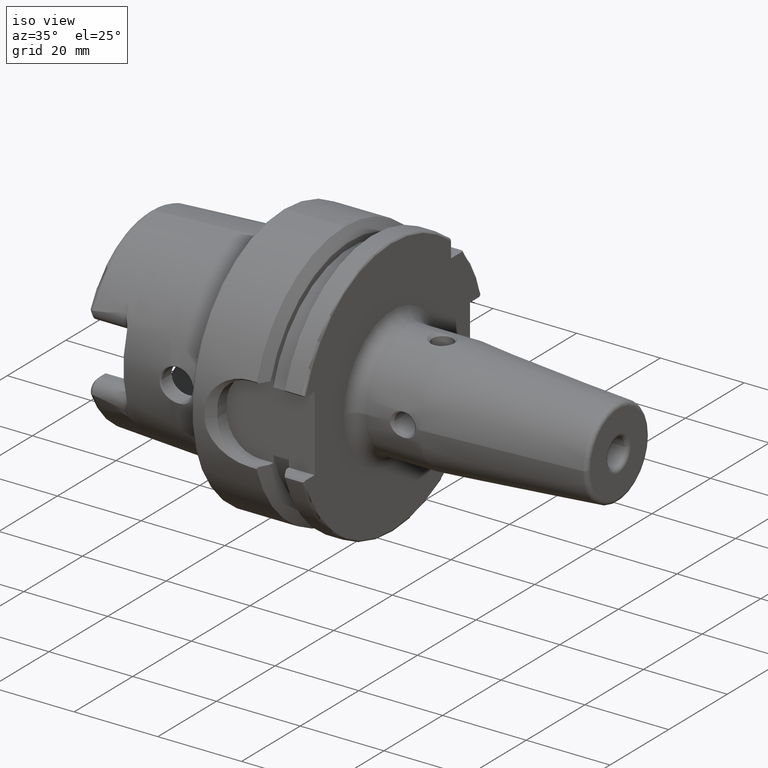
[diagram: clean part render]
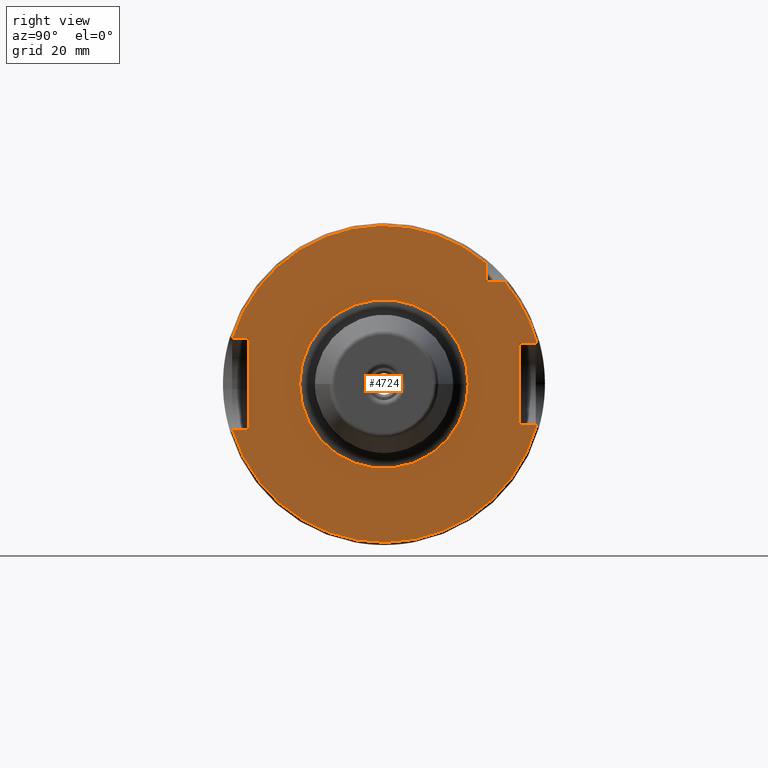
[diagram: tour spotlight — one face highlighted and labeled with its STEP entity id]
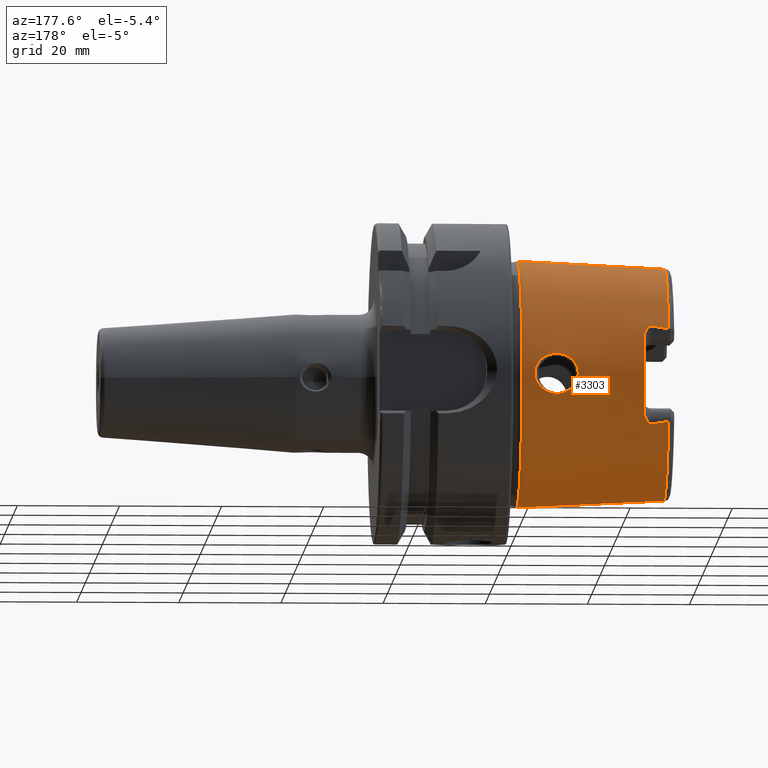
[diagram: tour spotlight — one face highlighted and labeled with its STEP entity id]
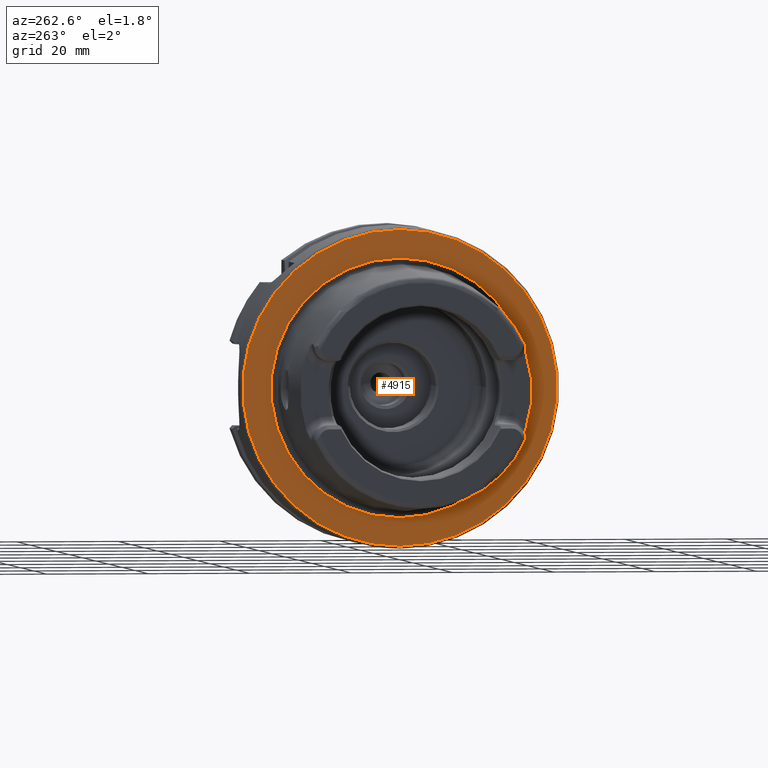
[diagram: tour spotlight — one face highlighted and labeled with its STEP entity id]
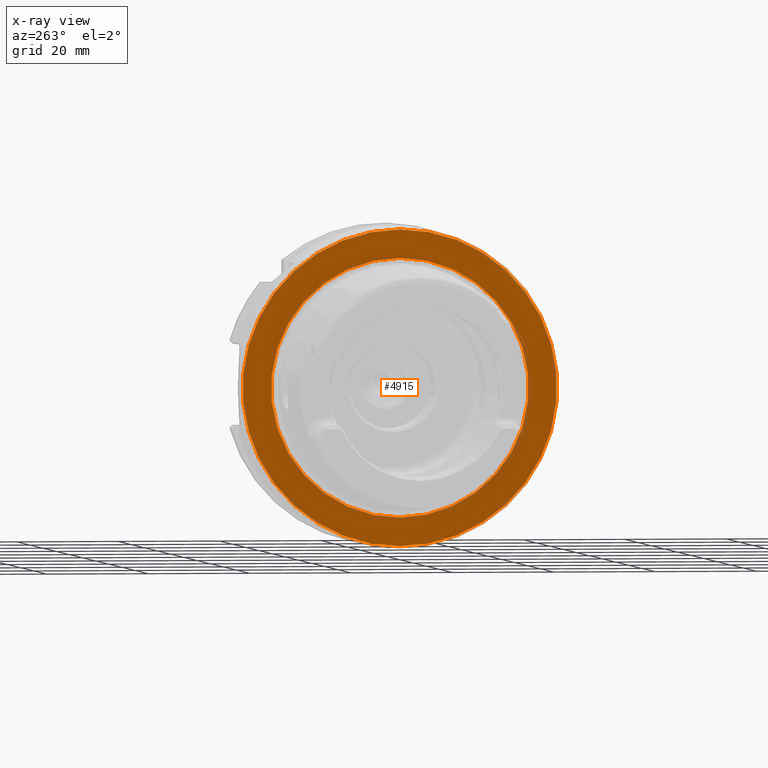
[diagram: x-ray of the same camera — body ghosted, this tour face saturated]
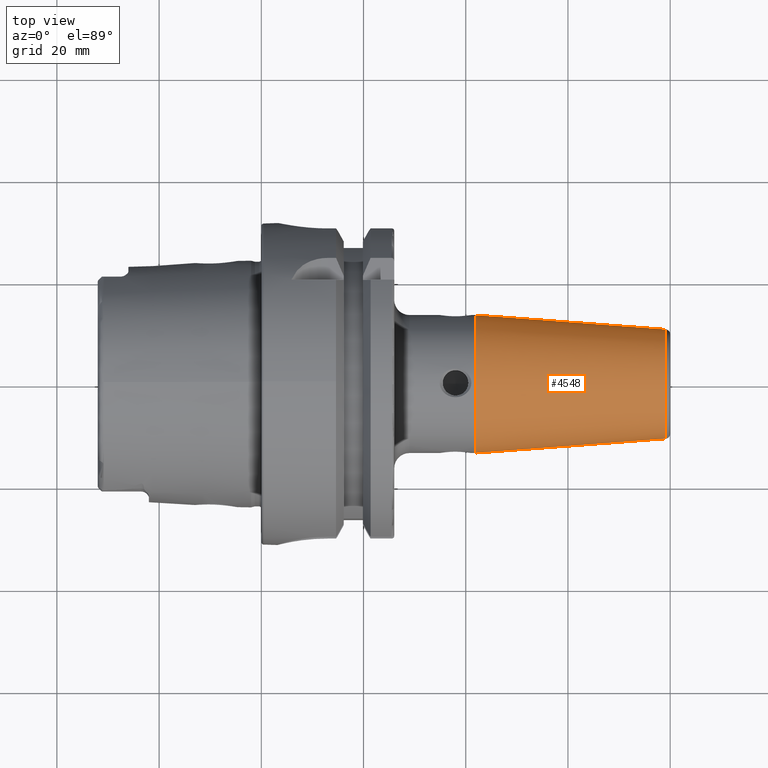
[diagram: tour spotlight — one face highlighted and labeled with its STEP entity id]
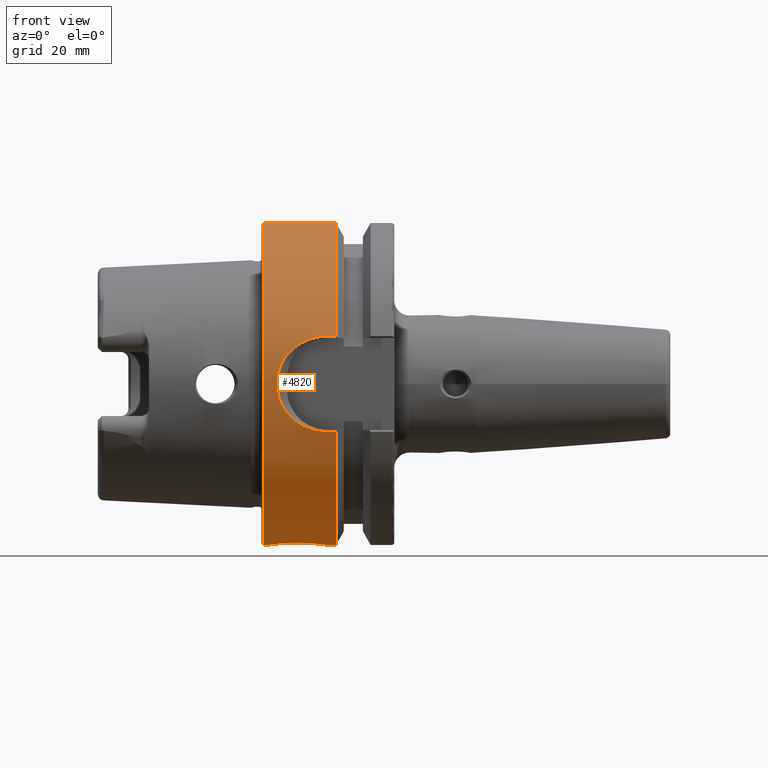
[diagram: tour spotlight — one face highlighted and labeled with its STEP entity id]
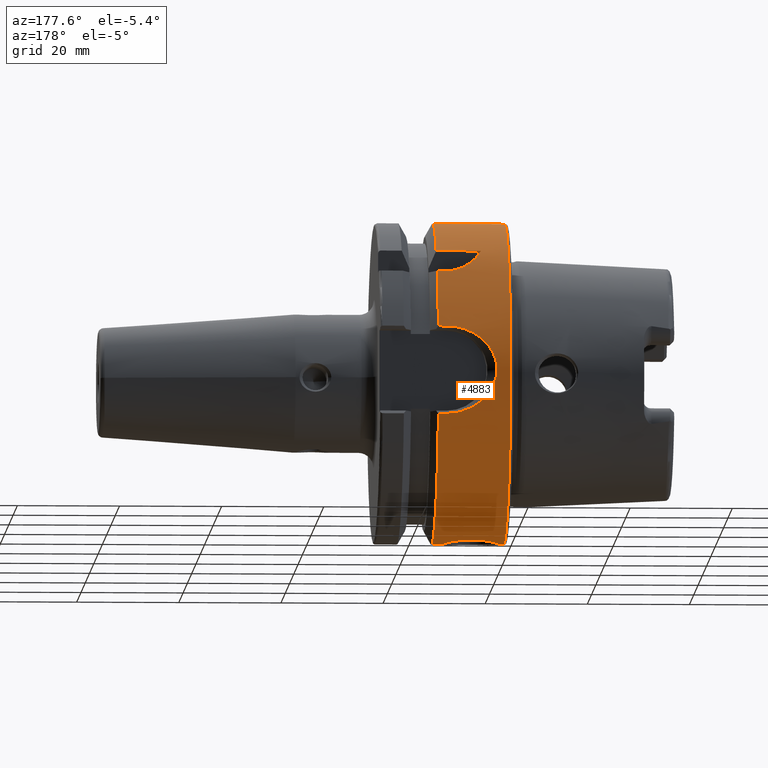
[diagram: tour spotlight — one face highlighted and labeled with its STEP entity id]
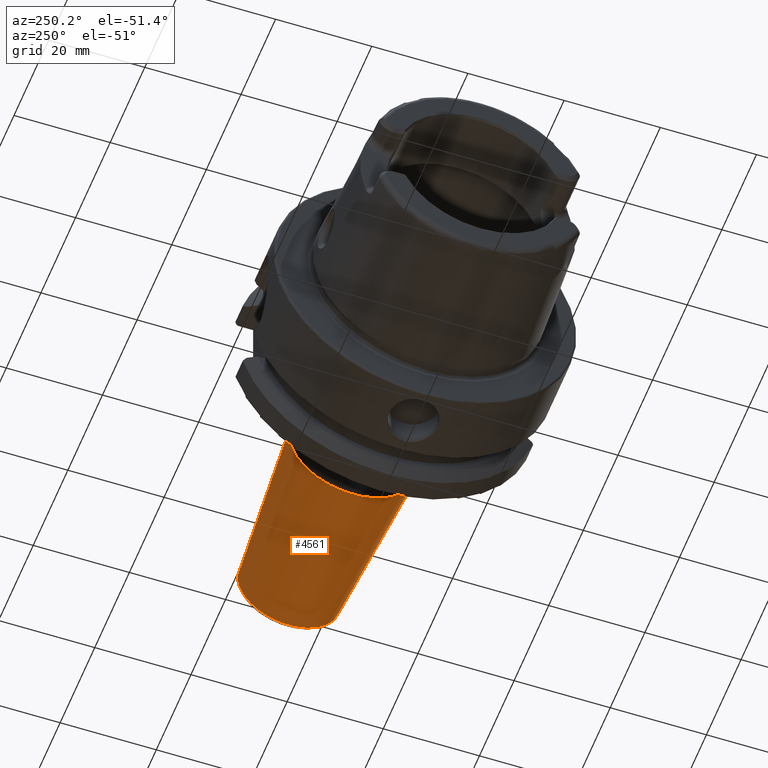
[diagram: tour spotlight — one face highlighted and labeled with its STEP entity id]
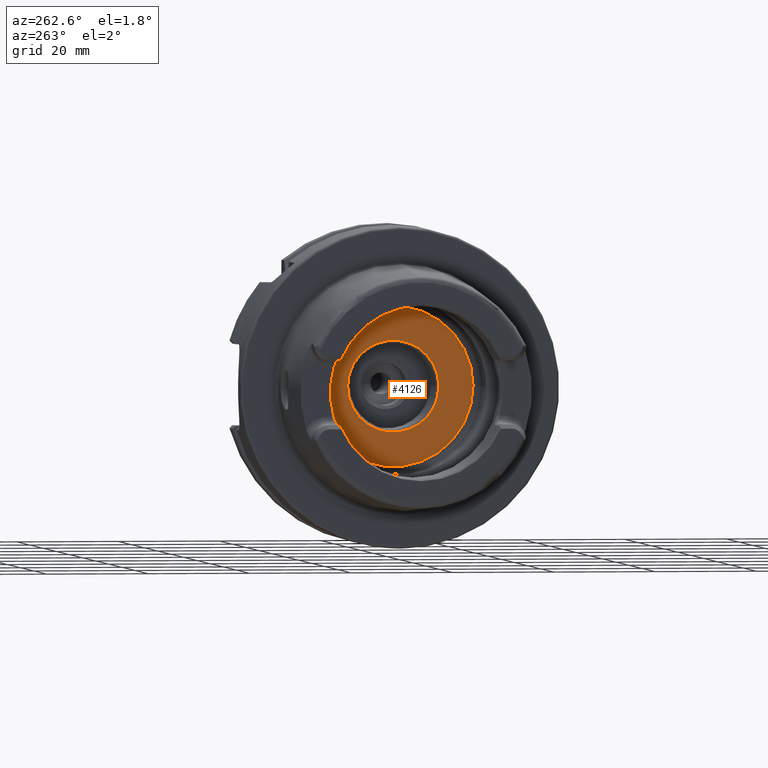
[diagram: tour spotlight — one face highlighted and labeled with its STEP entity id]
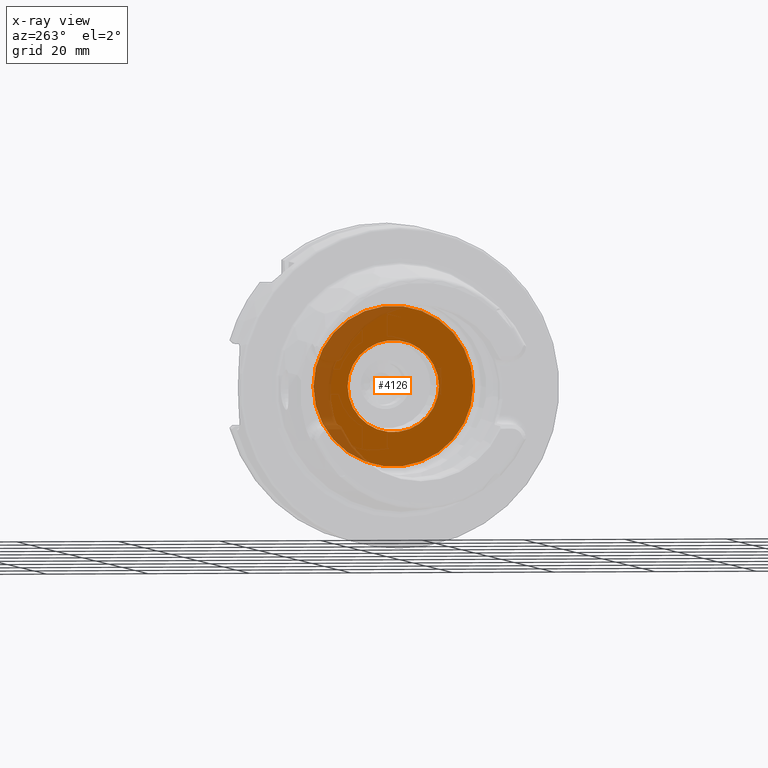
[diagram: x-ray of the same camera — body ghosted, this tour face saturated]
A machine part: a face-by-face anatomy tour. The part has 202 B-rep faces; the first image is the clean iso view, then the 8 largest visible faces are spotlighted one at a time (largest first), each with its STEP entity span.

Face 1 — right view, entity #4724. In plain terms, the highlighted planar face has unit normal (1, 0, 0).
Definition (entity closure, byte-faithful):
#1300=DIRECTION('',(0.E0,1.E0,0.E0));
#1301=VECTOR('',#1300,1.245981869442E-1);
#1302=CARTESIAN_POINT('',(1.023622047244E0,-1.167905273558E0,
-3.543307086614E-1));
#1303=LINE('',#1302,#1301);
#1304=DIRECTION('',(0.E0,0.E0,1.E0));
#1305=VECTOR('',#1304,7.086614173228E-1);
#1306=CARTESIAN_POINT('',(1.023622047244E0,-1.043307086614E0,
-3.543307086614E-1));
#1307=LINE('',#1306,#1305);
#1308=DIRECTION('',(0.E0,1.E0,0.E0));
#1309=VECTOR('',#1308,1.245981869442E-1);
#1310=CARTESIAN_POINT('',(1.023622047244E0,-1.167905273558E0,
3.543307086614E-1));
#1311=LINE('',#1310,#1309);
#1312=DIRECTION('',(0.E0,0.E0,-1.E0));
#1313=VECTOR('',#1312,1.450960064824E-1);
#1314=CARTESIAN_POINT('',(1.023622047244E0,7.874015748031E-1,
9.324975812856E-1));
#1315=LINE('',#1314,#1313);
#1316=DIRECTION('',(0.E0,-1.E0,0.E0));
#1317=VECTOR('',#1316,1.450960064824E-1);
#1318=CARTESIAN_POINT('',(1.023622047244E0,9.324975812856E-1,
7.874015748031E-1));
#1319=LINE('',#1318,#1317);
#1320=DIRECTION('',(0.E0,-7.071067811866E-1,-7.071067811865E-1));
#1321=VECTOR('',#1320,1.095285451143E-2);
#1322=CARTESIAN_POINT('',(1.023622047244E0,1.177036176281E0,3.227054676196E-1));
#1323=LINE('',#1322,#1321);
#1324=DIRECTION('',(0.E0,-1.E0,0.E0));
#1325=VECTOR('',#1324,1.259842519685E-1);
#1326=CARTESIAN_POINT('',(1.023622047244E0,1.169291338583E0,3.149606299213E-1));
#1327=LINE('',#1326,#1325);
#1328=DIRECTION('',(0.E0,0.E0,1.E0));
#1329=VECTOR('',#1328,6.299212598425E-1);
#1330=CARTESIAN_POINT('',(1.023622047244E0,1.043307086614E0,
-3.149606299213E-1));
#1331=LINE('',#1330,#1329);
#1332=DIRECTION('',(0.E0,-1.E0,0.E0));
#1333=VECTOR('',#1332,1.259842519685E-1);
#1334=CARTESIAN_POINT('',(1.023622047244E0,1.169291338583E0,
-3.149606299213E-1));
#1335=LINE('',#1334,#1333);
#1336=DIRECTION('',(0.E0,-7.071067811866E-1,7.071067811865E-1));
#1337=VECTOR('',#1336,1.095285451143E-2);
#1338=CARTESIAN_POINT('',(1.023622047244E0,1.177036176281E0,
-3.227054676196E-1));
#1339=LINE('',#1338,#1337);
#1340=CARTESIAN_POINT('',(1.023622047244E0,0.E0,0.E0));
#1341=DIRECTION('',(1.E0,0.E0,0.E0));
#1342=DIRECTION('',(0.E0,-1.E0,0.E0));
#1343=AXIS2_PLACEMENT_3D('',#1340,#1341,#1342);
#1345=CARTESIAN_POINT('',(1.023622047244E0,0.E0,0.E0));
#1346=DIRECTION('',(1.E0,0.E0,0.E0));
#1347=DIRECTION('',(0.E0,1.E0,0.E0));
#1348=AXIS2_PLACEMENT_3D('',#1345,#1346,#1347);
#1355=CARTESIAN_POINT('',(1.023622047244E0,0.E0,0.E0));
#1356=DIRECTION('',(1.E0,0.E0,0.E0));
#1357=DIRECTION('',(0.E0,-9.569288370446E-1,-2.903225806452E-1));
#1358=AXIS2_PLACEMENT_3D('',#1355,#1356,#1357);
#1480=CARTESIAN_POINT('',(1.023622047244E0,1.177036176281E0,
-3.227054676196E-1));
#1823=CARTESIAN_POINT('',(1.023622047244E0,-1.167905273558E0,
3.543307086614E-1));
#1958=CARTESIAN_POINT('',(1.023622047244E0,-1.167905273558E0,
-3.543307086614E-1));
#2151=CARTESIAN_POINT('',(1.023622047244E0,1.177036176281E0,3.227054676196E-1));
#2170=CARTESIAN_POINT('',(1.023622047244E0,0.E0,0.E0));
#2171=DIRECTION('',(1.E0,0.E0,0.E0));
#2172=DIRECTION('',(0.E0,9.644102863722E-1,2.644102863722E-1));
#2173=AXIS2_PLACEMENT_3D('',#2170,#2171,#2172);
#2175=CARTESIAN_POINT('',(1.023622047244E0,9.324975812856E-1,
7.874015748031E-1));
#2200=CARTESIAN_POINT('',(1.023622047244E0,7.874015748031E-1,
9.324975812856E-1));
#2215=CARTESIAN_POINT('',(1.023622047244E0,0.E0,0.E0));
#2216=DIRECTION('',(1.E0,0.E0,0.E0));
#2217=DIRECTION('',(0.E0,6.451612903226E-1,7.640464053114E-1));
#2218=AXIS2_PLACEMENT_3D('',#2215,#2216,#2217);
#2795=CARTESIAN_POINT('',(1.023622047244E0,1.043307086614E0,
-3.149606299213E-1));
#2796=CARTESIAN_POINT('',(1.023622047244E0,1.043307086614E0,3.149606299213E-1));
#2797=VERTEX_POINT('',#2795);
#2798=VERTEX_POINT('',#2796);
#2827=CARTESIAN_POINT('',(1.023622047244E0,-1.043307086614E0,
-3.543307086614E-1));
#2828=CARTESIAN_POINT('',(1.023622047244E0,-1.043307086614E0,
3.543307086614E-1));
#2829=VERTEX_POINT('',#2827);
#2830=VERTEX_POINT('',#2828);
#2885=CARTESIAN_POINT('',(1.023622047244E0,7.874015748031E-1,
7.874015748031E-1));
#2886=VERTEX_POINT('',#2885);
#3078=CARTESIAN_POINT('',(1.023622047244E0,1.169291338583E0,
-3.149606299213E-1));
#3079=VERTEX_POINT('',#3078);
#3080=CARTESIAN_POINT('',(1.023622047244E0,1.169291338583E0,3.149606299213E-1));
#3081=VERTEX_POINT('',#3080);
#3094=VERTEX_POINT('',#1958);
#3095=VERTEX_POINT('',#1480);
#3098=VERTEX_POINT('',#2151);
#3099=VERTEX_POINT('',#2175);
#3102=VERTEX_POINT('',#2200);
#3103=VERTEX_POINT('',#1823);
#3242=CARTESIAN_POINT('',(1.023622047244E0,-6.495E-1,0.E0));
#3243=CARTESIAN_POINT('',(1.023622047244E0,6.495E-1,0.E0));
#3244=VERTEX_POINT('',#3242);
#3245=VERTEX_POINT('',#3243);
#4686=CARTESIAN_POINT('',(1.023622047244E0,0.E0,0.E0));
#4687=DIRECTION('',(1.E0,0.E0,0.E0));
#4688=DIRECTION('',(0.E0,0.E0,1.E0));
#4689=AXIS2_PLACEMENT_3D('',#4686,#4687,#4688);
#4690=PLANE('',#4689);
#4692=ORIENTED_EDGE('',*,*,#4691,.F.);
#4694=ORIENTED_EDGE('',*,*,#4693,.T.);
#4696=ORIENTED_EDGE('',*,*,#4695,.T.);
#4698=ORIENTED_EDGE('',*,*,#4697,.F.);
#4700=ORIENTED_EDGE('',*,*,#4699,.F.);
#4702=ORIENTED_EDGE('',*,*,#4701,.T.);
#4704=ORIENTED_EDGE('',*,*,#4703,.F.);
#4706=ORIENTED_EDGE('',*,*,#4705,.F.);
#4708=ORIENTED_EDGE('',*,*,#4707,.T.);
#4710=ORIENTED_EDGE('',*,*,#4709,.T.);
#4712=ORIENTED_EDGE('',*,*,#4711,.F.);
#4714=ORIENTED_EDGE('',*,*,#4713,.F.);
#4716=ORIENTED_EDGE('',*,*,#4715,.F.);
#4717=EDGE_LOOP('',(#4692,#4694,#4696,#4698,#4700,#4702,#4704,#4706,#4708,#4710,
#4712,#4714,#4716));
#4718=FACE_OUTER_BOUND('',#4717,.F.);
#4719=ORIENTED_EDGE('',*,*,#4676,.T.);
#4721=ORIENTED_EDGE('',*,*,#4720,.T.);
#4722=EDGE_LOOP('',(#4719,#4721));
#4723=FACE_BOUND('',#4722,.F.);
#4724=ADVANCED_FACE('',(#4718,#4723),#4690,.T.);
#1344=CIRCLE('',#1343,6.495E-1);
#1349=CIRCLE('',#1348,6.495E-1);
#1359=CIRCLE('',#1358,1.220472440945E0);
#2174=CIRCLE('',#2173,1.220472440945E0);
#2219=CIRCLE('',#2218,1.220472440945E0);
#4676=EDGE_CURVE('',#3244,#3245,#1344,.T.);
#4691=EDGE_CURVE('',#3094,#3095,#1359,.T.);
#4693=EDGE_CURVE('',#3094,#2829,#1303,.T.);
#4695=EDGE_CURVE('',#2829,#2830,#1307,.T.);
#4697=EDGE_CURVE('',#3103,#2830,#1311,.T.);
#4699=EDGE_CURVE('',#3102,#3103,#2219,.T.);
#4701=EDGE_CURVE('',#3102,#2886,#1315,.T.);
#4703=EDGE_CURVE('',#3099,#2886,#1319,.T.);
#4705=EDGE_CURVE('',#3098,#3099,#2174,.T.);
#4707=EDGE_CURVE('',#3098,#3081,#1323,.T.);
#4709=EDGE_CURVE('',#3081,#2798,#1327,.T.);
#4711=EDGE_CURVE('',#2797,#2798,#1331,.T.);
#4713=EDGE_CURVE('',#3079,#2797,#1335,.T.);
#4715=EDGE_CURVE('',#3095,#3079,#1339,.T.);
#4720=EDGE_CURVE('',#3245,#3244,#1349,.T.);

Face 2 — auxiliary view, entity #3303. In plain terms, the highlighted conical surface has half-angle 2.868 deg.
Definition (entity closure, byte-faithful):
#2=CARTESIAN_POINT('',(-1.214962335933E0,0.E0,0.E0));
#3=DIRECTION('',(-1.E0,0.E0,0.E0));
#4=DIRECTION('',(0.E0,9.163649919573E-1,-4.003438540993E-1));
#5=AXIS2_PLACEMENT_3D('',#2,#3,#4);
#7=CARTESIAN_POINT('',(-7.874326638371E-2,0.E0,0.E0));
#8=DIRECTION('',(-1.E0,0.E0,0.E0));
#9=DIRECTION('',(0.E0,0.E0,1.E0));
#10=AXIS2_PLACEMENT_3D('',#7,#8,#9);
#12=CARTESIAN_POINT('',(-1.214962335933E0,0.E0,0.E0));
#13=DIRECTION('',(-1.E0,0.E0,0.E0));
#14=DIRECTION('',(0.E0,0.E0,1.E0));
#15=AXIS2_PLACEMENT_3D('',#12,#13,#14);
#17=CARTESIAN_POINT('',(-1.214962335933E0,8.216463940023E-1,3.589629535925E-1));
#18=CARTESIAN_POINT('',(-1.202137723520E0,8.216639653228E-1,3.605276004912E-1));
#19=CARTESIAN_POINT('',(-1.177407684652E0,8.216344615646E-1,3.636728149463E-1));
#20=CARTESIAN_POINT('',(-1.143154063882E0,8.213907522023E-1,3.684365793121E-1));
#21=CARTESIAN_POINT('',(-1.111500122064E0,8.209350689024E-1,3.732991764527E-1));
#22=CARTESIAN_POINT('',(-1.092007231354E0,8.204717269718E-1,3.766570196267E-1));
#23=CARTESIAN_POINT('',(-1.082677165354E0,8.201929111471E-1,3.783772381900E-1));
#25=CARTESIAN_POINT('',(-1.214962335933E0,8.216463940023E-1,
-3.589629535925E-1));
#26=CARTESIAN_POINT('',(-1.202137723520E0,8.216639653228E-1,
-3.605276004912E-1));
#27=CARTESIAN_POINT('',(-1.177407684652E0,8.216344615646E-1,
-3.636728149463E-1));
#28=CARTESIAN_POINT('',(-1.143154063882E0,8.213907522023E-1,
-3.684365793122E-1));
#29=CARTESIAN_POINT('',(-1.111500122063E0,8.209350689024E-1,
-3.732991764527E-1));
#30=CARTESIAN_POINT('',(-1.092007231354E0,8.204717269718E-1,
-3.766570196267E-1));
#31=CARTESIAN_POINT('',(-1.082677165354E0,8.201929111471E-1,
-3.783772381900E-1));
#33=CARTESIAN_POINT('',(-5.135587364269E-1,9.317761270647E-1,0.E0));
#34=CARTESIAN_POINT('',(-5.135587364269E-1,9.317761270647E-1,
-1.059444452188E-2));
#35=CARTESIAN_POINT('',(-5.112597052915E-1,9.315338257443E-1,
-3.114181466205E-2));
#36=CARTESIAN_POINT('',(-5.014470522860E-1,9.305604535621E-1,
-6.048739951771E-2));
#37=CARTESIAN_POINT('',(-4.859473398358E-1,9.292047173046E-1,
-8.702272828687E-2));
#38=CARTESIAN_POINT('',(-4.652534086689E-1,9.277410228939E-1,
-1.103260432304E-1));
#39=CARTESIAN_POINT('',(-4.399343063564E-1,9.264965720588E-1,
-1.295815820201E-1));
#40=CARTESIAN_POINT('',(-4.112508109157E-1,9.258207256304E-1,
-1.438139631638E-1));
#41=CARTESIAN_POINT('',(-3.805744316710E-1,9.259628364122E-1,
-1.525413198110E-1));
#42=CARTESIAN_POINT('',(-3.491300482257E-1,9.270293295367E-1,
-1.556952009316E-1));
#43=CARTESIAN_POINT('',(-3.175277998099E-1,9.290348030975E-1,
-1.533200893499E-1));
#44=CARTESIAN_POINT('',(-2.866288199643E-1,9.318865010712E-1,
-1.454333333278E-1));
#45=CARTESIAN_POINT('',(-2.568102767866E-1,9.354727822779E-1,
-1.316285605697E-1));
#46=CARTESIAN_POINT('',(-2.307133790197E-1,9.392755291863E-1,
-1.128189098473E-1));
#47=CARTESIAN_POINT('',(-2.090756611950E-1,9.428803181948E-1,
-8.972578975874E-2));
#48=CARTESIAN_POINT('',(-1.926659984561E-1,9.458837318081E-1,
-6.324011733582E-2));
#49=CARTESIAN_POINT('',(-1.818249999109E-1,9.479940993873E-1,
-3.305526295405E-2));
#50=CARTESIAN_POINT('',(-1.791683784831E-1,9.485287041170E-1,
-1.132568648947E-2));
#51=CARTESIAN_POINT('',(-1.791683784831E-1,9.485287041170E-1,0.E0));
#53=CARTESIAN_POINT('',(-1.791683784831E-1,9.485287041170E-1,0.E0));
#54=CARTESIAN_POINT('',(-1.791683784831E-1,9.485287041170E-1,
1.125393156092E-2));
#55=CARTESIAN_POINT('',(-1.817938965527E-1,9.480004279794E-1,
3.286506563893E-2));
#56=CARTESIAN_POINT('',(-1.925167139127E-1,9.459123193772E-1,
6.291328007326E-2));
#57=CARTESIAN_POINT('',(-2.088312421430E-1,9.429234192839E-1,
8.940721633452E-2));
#58=CARTESIAN_POINT('',(-2.304380063324E-1,9.393183003810E-1,
1.125854905139E-1));
#59=CARTESIAN_POINT('',(-2.566028044485E-1,9.354997705104E-1,
1.315154173367E-1));
#60=CARTESIAN_POINT('',(-2.864670183772E-1,9.319034963393E-1,
1.453777911108E-1));
#61=CARTESIAN_POINT('',(-3.173741363603E-1,9.290467043507E-1,
1.532956042085E-1));
#62=CARTESIAN_POINT('',(-3.489901207594E-1,9.270360614975E-1,
1.556974112705E-1));
#63=CARTESIAN_POINT('',(-3.804412569754E-1,9.259652844026E-1,
1.525672724497E-1));
#64=CARTESIAN_POINT('',(-4.111359782159E-1,9.258195955679E-1,
1.438580890741E-1));
#65=CARTESIAN_POINT('',(-4.398122717152E-1,9.264922531515E-1,
1.296552079440E-1));
#66=CARTESIAN_POINT('',(-4.651284366432E-1,9.277335790677E-1,
1.104383199464E-1));
#67=CARTESIAN_POINT('',(-4.858294077307E-1,9.291952802441E-1,
8.718376756846E-2));
#68=CARTESIAN_POINT('',(-5.013786107220E-1,9.305538653369E-1,
6.064605492795E-2));
#69=CARTESIAN_POINT('',(-5.112424733790E-1,9.315319984649E-1,
3.124649715283E-2));
#70=CARTESIAN_POINT('',(-5.135587364269E-1,9.317761270647E-1,
1.063446270722E-2));
#71=CARTESIAN_POINT('',(-5.135587364269E-1,9.317761270647E-1,0.E0));
#211=CARTESIAN_POINT('',(-1.082677165354E0,8.201929111471E-1,
-3.783772381900E-1));
#212=CARTESIAN_POINT('',(-1.080309829068E0,8.201221666509E-1,
-3.788137126829E-1));
#213=CARTESIAN_POINT('',(-1.075594075364E0,8.204210102496E-1,
-3.787309924892E-1));
#214=CARTESIAN_POINT('',(-1.068447470776E0,8.222354159038E-1,
-3.756470066564E-1));
#215=CARTESIAN_POINT('',(-1.061738070197E0,8.249516507251E-1,
-3.704741763439E-1));
#216=CARTESIAN_POINT('',(-1.055444552167E0,8.281651463979E-1,
-3.640261670956E-1));
#217=CARTESIAN_POINT('',(-1.049345846034E0,8.318078643387E-1,
-3.564100526824E-1));
#218=CARTESIAN_POINT('',(-1.043455920428E0,8.358237463313E-1,
-3.476666565947E-1));
#219=CARTESIAN_POINT('',(-1.037919085595E0,8.401294406465E-1,
-3.378858227048E-1));
#220=CARTESIAN_POINT('',(-1.032740774694E0,8.448266636937E-1,
-3.267036775167E-1));
#221=CARTESIAN_POINT('',(-1.028158698021E0,8.499727965999E-1,
-3.137638462499E-1));
#222=CARTESIAN_POINT('',(-1.024670355310E0,8.555628502604E-1,
-2.987534840124E-1));
#223=CARTESIAN_POINT('',(-1.023622047244E0,8.595096227887E-1,
-2.872696979579E-1));
#224=CARTESIAN_POINT('',(-1.023622047244E0,8.615055747168E-1,
-2.811537426929E-1));
#240=CARTESIAN_POINT('',(-1.023622047244E0,0.E0,0.E0));
#241=DIRECTION('',(1.E0,0.E0,0.E0));
#242=DIRECTION('',(0.E0,9.506556522061E-1,-3.102480151887E-1));
#243=AXIS2_PLACEMENT_3D('',#240,#241,#242);
#296=CARTESIAN_POINT('',(-1.023622047244E0,8.615055747168E-1,
2.811537426929E-1));
#297=CARTESIAN_POINT('',(-1.023622047244E0,8.598291848240E-1,
2.862905024749E-1));
#298=CARTESIAN_POINT('',(-1.024361652978E0,8.564729743239E-1,
2.961457944053E-1));
#299=CARTESIAN_POINT('',(-1.027113978821E0,8.514681903447E-1,
3.098196015217E-1));
#300=CARTESIAN_POINT('',(-1.030960475755E0,8.467084796506E-1,
3.220390391123E-1));
#301=CARTESIAN_POINT('',(-1.035518124532E0,8.422242132077E-1,
3.329555717421E-1));
#302=CARTESIAN_POINT('',(-1.040527922392E0,8.380397156604E-1,
3.426771762161E-1));
#303=CARTESIAN_POINT('',(-1.045823871878E0,8.341589953559E-1,
3.513262520907E-1));
#304=CARTESIAN_POINT('',(-1.051348273903E0,8.305689569780E-1,
3.590265647447E-1));
#305=CARTESIAN_POINT('',(-1.057063724649E0,8.272918188686E-1,
3.658012265087E-1));
#306=CARTESIAN_POINT('',(-1.063155631619E0,8.243273323755E-1,
3.716845558941E-1));
#307=CARTESIAN_POINT('',(-1.069347462317E0,8.219682004198E-1,
3.761200819397E-1));
#308=CARTESIAN_POINT('',(-1.076021270772E0,8.203819932679E-1,
3.787641864703E-1));
#309=CARTESIAN_POINT('',(-1.080447741821E0,8.201262879784E-1,
3.787882852015E-1));
#310=CARTESIAN_POINT('',(-1.082677165354E0,8.201929111471E-1,
3.783772381900E-1));
#496=DIRECTION('',(-9.987474310439E-1,-1.043894675169E-10,-5.003567710383E-2));
#497=VECTOR('',#496,1.137647135239E0);
#498=CARTESIAN_POINT('',(-7.874018217920E-2,1.186287369443E-10,
9.535595482687E-1));
#499=LINE('',#498,#497);
#505=DIRECTION('',(-9.987474310439E-1,1.043905282618E-10,5.003567710383E-2));
#506=VECTOR('',#505,1.137647135239E0);
#507=CARTESIAN_POINT('',(-7.874018217920E-2,-1.186287973355E-10,
-9.535595482687E-1));
#508=LINE('',#507,#506);
#2783=CARTESIAN_POINT('',(-7.874326638371E-2,0.E0,-9.535598881463E-1));
#2784=CARTESIAN_POINT('',(-7.874326638371E-2,0.E0,9.535598881463E-1));
#2785=VERTEX_POINT('',#2783);
#2786=VERTEX_POINT('',#2784);
#2928=CARTESIAN_POINT('',(-1.023622047244E0,8.615055747168E-1,
-2.811537426929E-1));
#2930=VERTEX_POINT('',#2928);
#2932=CARTESIAN_POINT('',(-1.082677165354E0,8.201929111471E-1,
-3.783772381900E-1));
#2934=VERTEX_POINT('',#2932);
#2936=CARTESIAN_POINT('',(-1.082677165354E0,8.201929111471E-1,
3.783772381900E-1));
#2938=VERTEX_POINT('',#2936);
#2940=CARTESIAN_POINT('',(-1.023622047244E0,8.615055747168E-1,
2.811537426929E-1));
#2942=VERTEX_POINT('',#2940);
#2954=CARTESIAN_POINT('',(-1.214962335933E0,0.E0,-8.966366035518E-1));
#2956=VERTEX_POINT('',#2954);
#2958=CARTESIAN_POINT('',(-1.214962335933E0,8.216463940023E-1,
-3.589629535925E-1));
#2959=VERTEX_POINT('',#2958);
#2960=CARTESIAN_POINT('',(-1.214962335933E0,0.E0,8.966366035518E-1));
#2961=CARTESIAN_POINT('',(-1.214962335933E0,8.216463940023E-1,
3.589629535925E-1));
#2962=VERTEX_POINT('',#2960);
#2963=VERTEX_POINT('',#2961);
#3026=VERTEX_POINT('',#33);
#3027=VERTEX_POINT('',#51);
#3270=CARTESIAN_POINT('',(-6.468512714133E-1,0.E0,0.E0));
#3271=DIRECTION('',(1.E0,0.E0,0.E0));
#3272=DIRECTION('',(0.E0,0.E0,1.E0));
#3273=AXIS2_PLACEMENT_3D('',#3270,#3271,#3272);
#3274=CONICAL_SURFACE('',#3273,9.250983224875E-1,2.86805556E0);
#3276=ORIENTED_EDGE('',*,*,#3275,.T.);
#3278=ORIENTED_EDGE('',*,*,#3277,.F.);
#3280=ORIENTED_EDGE('',*,*,#3279,.F.);
#3282=ORIENTED_EDGE('',*,*,#3281,.T.);
#3284=ORIENTED_EDGE('',*,*,#3283,.T.);
#3286=ORIENTED_EDGE('',*,*,#3285,.T.);
#3288=ORIENTED_EDGE('',*,*,#3287,.F.);
#3290=ORIENTED_EDGE('',*,*,#3289,.F.);
#3292=ORIENTED_EDGE('',*,*,#3291,.F.);
#3294=ORIENTED_EDGE('',*,*,#3293,.F.);
#3295=EDGE_LOOP('',(#3276,#3278,#3280,#3282,#3284,#3286,#3288,#3290,#3292,
#3294));
#3296=FACE_OUTER_BOUND('',#3295,.F.);
#3298=ORIENTED_EDGE('',*,*,#3297,.F.);
#3300=ORIENTED_EDGE('',*,*,#3299,.F.);
#3301=EDGE_LOOP('',(#3298,#3300));
#3302=FACE_BOUND('',#3301,.F.);
#3303=ADVANCED_FACE('',(#3296,#3302),#3274,.T.);
#6=CIRCLE('',#5,8.966366035518E-1);
#11=CIRCLE('',#10,9.535598881463E-1);
#16=CIRCLE('',#15,8.966366035518E-1);
#24=B_SPLINE_CURVE_WITH_KNOTS('',3,(#17,#18,#19,#20,#21,#22,#23),.UNSPECIFIED.,
.F.,.F.,(4,1,1,1,4),(0.E0,2.5E-1,5.E-1,7.5E-1,1.E0),.UNSPECIFIED.);
#32=B_SPLINE_CURVE_WITH_KNOTS('',3,(#25,#26,#27,#28,#29,#30,#31),.UNSPECIFIED.,
.F.,.F.,(4,1,1,1,4),(0.E0,2.5E-1,5.E-1,7.5E-1,1.E0),.UNSPECIFIED.);
#52=B_SPLINE_CURVE_WITH_KNOTS('',3,(#33,#34,#35,#36,#37,#38,#39,#40,#41,#42,#43,
#44,#45,#46,#47,#48,#49,#50,#51),.UNSPECIFIED.,.F.,.F.,(4,1,1,1,1,1,1,1,1,1,1,1,
1,1,1,1,4),(0.E0,6.25E-2,1.25E-1,1.875E-1,2.5E-1,3.125E-1,3.75E-1,4.375E-1,
5.E-1,5.625E-1,6.25E-1,6.875E-1,7.5E-1,8.125E-1,8.75E-1,9.375E-1,1.E0),
.UNSPECIFIED.);
#72=B_SPLINE_CURVE_WITH_KNOTS('',3,(#53,#54,#55,#56,#57,#58,#59,#60,#61,#62,#63,
#64,#65,#66,#67,#68,#69,#70,#71),.UNSPECIFIED.,.F.,.F.,(4,1,1,1,1,1,1,1,1,1,1,1,
1,1,1,1,4),(0.E0,6.25E-2,1.25E-1,1.875E-1,2.5E-1,3.125E-1,3.75E-1,4.375E-1,
5.E-1,5.625E-1,6.25E-1,6.875E-1,7.5E-1,8.125E-1,8.75E-1,9.375E-1,1.E0),
.UNSPECIFIED.);
#225=B_SPLINE_CURVE_WITH_KNOTS('',3,(#211,#212,#213,#214,#215,#216,#217,#218,
#219,#220,#221,#222,#223,#224),.UNSPECIFIED.,.F.,.F.,(4,1,1,1,1,1,1,1,1,1,1,4),(
0.E0,9.090909090909E-2,1.818181818182E-1,2.727272727273E-1,3.636363636364E-1,
4.545454545455E-1,5.454545454545E-1,6.363636363636E-1,7.272727272727E-1,
8.181818181818E-1,9.090909090909E-1,1.E0),.UNSPECIFIED.);
#244=CIRCLE('',#243,9.062225346450E-1);
#311=B_SPLINE_CURVE_WITH_KNOTS('',3,(#296,#297,#298,#299,#300,#301,#302,#303,
#304,#305,#306,#307,#308,#309,#310),.UNSPECIFIED.,.F.,.F.,(4,1,1,1,1,1,1,1,1,1,
1,1,4),(0.E0,8.333333333333E-2,1.666666666667E-1,2.5E-1,3.333333333333E-1,
4.166666666667E-1,5.E-1,5.833333333333E-1,6.666666666667E-1,7.5E-1,
8.333333333333E-1,9.166666666667E-1,1.E0),.UNSPECIFIED.);
#3275=EDGE_CURVE('',#2959,#2956,#6,.T.);
#3277=EDGE_CURVE('',#2785,#2956,#508,.T.);
#3279=EDGE_CURVE('',#2786,#2785,#11,.T.);
#3281=EDGE_CURVE('',#2786,#2962,#499,.T.);
#3283=EDGE_CURVE('',#2962,#2963,#16,.T.);
#3285=EDGE_CURVE('',#2963,#2938,#24,.T.);
#3287=EDGE_CURVE('',#2942,#2938,#311,.T.);
#3289=EDGE_CURVE('',#2930,#2942,#244,.T.);
#3291=EDGE_CURVE('',#2934,#2930,#225,.T.);
#3293=EDGE_CURVE('',#2959,#2934,#32,.T.);
#3297=EDGE_CURVE('',#3026,#3027,#52,.T.);
#3299=EDGE_CURVE('',#3027,#3026,#72,.T.);

Face 3 — auxiliary view, entity #4915. An x-ray twin of the same camera follows (body ghosted, this face saturated) — the face is partly hidden behind the body. In plain terms, the highlighted planar face has unit normal (1, 0, 0).
Definition (entity closure, byte-faithful):
#1584=CARTESIAN_POINT('',(0.E0,0.E0,0.E0));
#1585=DIRECTION('',(1.E0,0.E0,0.E0));
#1586=DIRECTION('',(0.E0,0.E0,-1.E0));
#1587=AXIS2_PLACEMENT_3D('',#1584,#1585,#1586);
#1589=CARTESIAN_POINT('',(0.E0,0.E0,0.E0));
#1590=DIRECTION('',(1.E0,0.E0,0.E0));
#1591=DIRECTION('',(0.E0,0.E0,1.E0));
#1592=AXIS2_PLACEMENT_3D('',#1589,#1590,#1591);
#1594=CARTESIAN_POINT('',(0.E0,0.E0,0.E0));
#1595=DIRECTION('',(-1.E0,0.E0,0.E0));
#1596=DIRECTION('',(0.E0,0.E0,1.E0));
#1597=AXIS2_PLACEMENT_3D('',#1594,#1595,#1596);
#1599=CARTESIAN_POINT('',(0.E0,0.E0,0.E0));
#1600=DIRECTION('',(-1.E0,0.E0,0.E0));
#1601=DIRECTION('',(0.E0,0.E0,-1.E0));
#1602=AXIS2_PLACEMENT_3D('',#1599,#1600,#1601);
#2775=CARTESIAN_POINT('',(0.E0,0.E0,-1.000803149606E0));
#2776=CARTESIAN_POINT('',(0.E0,0.E0,1.000803149606E0));
#2777=VERTEX_POINT('',#2775);
#2778=VERTEX_POINT('',#2776);
#3084=CARTESIAN_POINT('',(0.E0,0.E0,1.220472440945E0));
#3085=CARTESIAN_POINT('',(0.E0,0.E0,-1.220472440945E0));
#3086=VERTEX_POINT('',#3084);
#3087=VERTEX_POINT('',#3085);
#4899=CARTESIAN_POINT('',(0.E0,0.E0,0.E0));
#4900=DIRECTION('',(1.E0,0.E0,0.E0));
#4901=DIRECTION('',(0.E0,0.E0,1.E0));
#4902=AXIS2_PLACEMENT_3D('',#4899,#4900,#4901);
#4903=PLANE('',#4902);
#4904=ORIENTED_EDGE('',*,*,#4889,.F.);
#4906=ORIENTED_EDGE('',*,*,#4905,.F.);
#4907=EDGE_LOOP('',(#4904,#4906));
#4908=FACE_OUTER_BOUND('',#4907,.F.);
#4910=ORIENTED_EDGE('',*,*,#4909,.F.);
#4912=ORIENTED_EDGE('',*,*,#4911,.F.);
#4913=EDGE_LOOP('',(#4910,#4912));
#4914=FACE_BOUND('',#4913,.F.);
#4915=ADVANCED_FACE('',(#4908,#4914),#4903,.F.);
#1588=CIRCLE('',#1587,1.000803149606E0);
#1593=CIRCLE('',#1592,1.000803149606E0);
#1598=CIRCLE('',#1597,1.220472440945E0);
#1603=CIRCLE('',#1602,1.220472440945E0);
#4889=EDGE_CURVE('',#3086,#3087,#1598,.T.);
#4905=EDGE_CURVE('',#3087,#3086,#1603,.T.);
#4909=EDGE_CURVE('',#2777,#2778,#1588,.T.);
#4911=EDGE_CURVE('',#2778,#2777,#1593,.T.);

Face 4 — top view, entity #4548. In plain terms, the highlighted conical surface has half-angle 4.3 deg.
Definition (entity closure, byte-faithful):
#1139=CARTESIAN_POINT('',(3.113924170346E0,0.E0,0.E0));
#1140=DIRECTION('',(1.E0,0.E0,0.E0));
#1141=DIRECTION('',(0.E0,1.E0,-1.696874364945E-10));
#1142=AXIS2_PLACEMENT_3D('',#1139,#1140,#1141);
#1144=DIRECTION('',(9.971851335251E-1,7.497872682633E-2,-1.406681497501E-9));
#1145=VECTOR('',#1144,1.469059376330E0);
#1146=CARTESIAN_POINT('',(1.649000000004E0,-5.314999999997E-1,
4.509438743066E-11));
#1147=LINE('',#1146,#1145);
#1153=DIRECTION('',(9.971851335251E-1,-7.497872682633E-2,1.406681511825E-9));
#1154=VECTOR('',#1153,1.469059376330E0);
#1155=CARTESIAN_POINT('',(1.649000000004E0,5.314999999997E-1,
-4.509440370316E-11));
#1156=LINE('',#1155,#1154);
#2317=CARTESIAN_POINT('',(1.649E0,0.E0,0.E0));
#2318=DIRECTION('',(-1.E0,0.E0,0.E0));
#2319=DIRECTION('',(0.E0,-1.E0,0.E0));
#2320=AXIS2_PLACEMENT_3D('',#2317,#2318,#2319);
#3118=CARTESIAN_POINT('',(1.649E0,5.315E-1,0.E0));
#3119=CARTESIAN_POINT('',(1.649E0,-5.315E-1,0.E0));
#3120=VERTEX_POINT('',#3118);
#3121=VERTEX_POINT('',#3119);
#3254=CARTESIAN_POINT('',(3.113924170346E0,-4.213517983302E-1,
7.149805492027E-11));
#3255=CARTESIAN_POINT('',(3.113924170346E0,4.213517983302E-1,
-7.149810652098E-11));
#3256=VERTEX_POINT('',#3254);
#3257=VERTEX_POINT('',#3255);
#4534=CARTESIAN_POINT('',(2.381462085173E0,0.E0,0.E0));
#4535=DIRECTION('',(-1.E0,0.E0,0.E0));
#4536=DIRECTION('',(0.E0,0.E0,-1.E0));
#4537=AXIS2_PLACEMENT_3D('',#4534,#4535,#4536);
#4538=CONICAL_SURFACE('',#4537,4.764258991651E-1,4.3E0);
#4539=ORIENTED_EDGE('',*,*,#4528,.T.);
#4541=ORIENTED_EDGE('',*,*,#4540,.F.);
#4543=ORIENTED_EDGE('',*,*,#4542,.T.);
#4545=ORIENTED_EDGE('',*,*,#4544,.T.);
#4546=EDGE_LOOP('',(#4539,#4541,#4543,#4545));
#4547=FACE_OUTER_BOUND('',#4546,.F.);
#4548=ADVANCED_FACE('',(#4547),#4538,.T.);
#1143=CIRCLE('',#1142,4.213517983302E-1);
#2321=CIRCLE('',#2320,5.315E-1);
#4528=EDGE_CURVE('',#3257,#3256,#1143,.T.);
#4540=EDGE_CURVE('',#3121,#3256,#1147,.T.);
#4542=EDGE_CURVE('',#3121,#3120,#2321,.T.);
#4544=EDGE_CURVE('',#3120,#3257,#1156,.T.);

Face 5 — front view, entity #4820. In plain terms, the highlighted cylindrical surface (partial cylindrical patch) has radius 31.5 mm, axis along (1, 0, 0).
Definition (entity closure, byte-faithful):
#1384=CARTESIAN_POINT('',(1.968503937008E-2,0.E0,0.E0));
#1385=DIRECTION('',(-1.E0,0.E0,0.E0));
#1386=DIRECTION('',(0.E0,0.E0,-1.E0));
#1387=AXIS2_PLACEMENT_3D('',#1384,#1385,#1386);
#1389=DIRECTION('',(-1.E0,-1.100747094611E-12,0.E0));
#1390=VECTOR('',#1389,5.560039726207E-1);
#1391=CARTESIAN_POINT('',(5.756890119908E-1,0.E0,1.240157480315E0));
#1392=LINE('',#1391,#1390);
#1393=CARTESIAN_POINT('',(5.756890119908E-1,0.E0,0.E0));
#1394=DIRECTION('',(1.E0,0.E0,0.E0));
#1395=DIRECTION('',(0.E0,0.E0,1.E0));
#1396=AXIS2_PLACEMENT_3D('',#1393,#1394,#1395);
#1398=DIRECTION('',(1.E0,0.E0,0.E0));
#1399=VECTOR('',#1398,6.387798836877E-2);
#1400=CARTESIAN_POINT('',(5.118110236220E-1,-1.183982137824E0,
3.690215079028E-1));
#1401=LINE('',#1400,#1399);
#1402=CARTESIAN_POINT('',(1.266093313834E-1,-1.239532400900E0,
3.937007874016E-2));
#1403=CARTESIAN_POINT('',(1.271523412197E-1,-1.238989391064E0,
5.646626720817E-2));
#1404=CARTESIAN_POINT('',(1.311545055955E-1,-1.237229055471E0,
8.979145086367E-2));
#1405=CARTESIAN_POINT('',(1.452660556986E-1,-1.232778865388E0,
1.377231134544E-1));
#1406=CARTESIAN_POINT('',(1.663252413423E-1,-1.227001882055E0,
1.818198174720E-1));
#1407=CARTESIAN_POINT('',(1.932766585167E-1,-1.220369812870E0,
2.217542771610E-1));
#1408=CARTESIAN_POINT('',(2.249143992296E-1,-1.213400927104E0,
2.569473042150E-1));
#1409=CARTESIAN_POINT('',(2.602522640166E-1,-1.206537526955E0,
2.872777746160E-1));
#1410=CARTESIAN_POINT('',(2.980893010050E-1,-1.200206876013E0,
3.125358270083E-1));
#1411=CARTESIAN_POINT('',(3.380494495445E-1,-1.194637017641E0,
3.330941475910E-1));
#1412=CARTESIAN_POINT('',(3.797447793567E-1,-1.190043145170E0,
3.490772152703E-1));
#1413=CARTESIAN_POINT('',(4.228787552399E-1,-1.186601437098E0,
3.605513349774E-1));
#1414=CARTESIAN_POINT('',(4.670461887655E-1,-1.184467126173E0,
3.674707367066E-1));
#1415=CARTESIAN_POINT('',(4.968151342743E-1,-1.183982137824E0,
3.690215079028E-1));
#1416=CARTESIAN_POINT('',(5.118110236220E-1,-1.183982137824E0,
3.690215079028E-1));
#1418=CARTESIAN_POINT('',(1.266093313834E-1,-1.239532400900E0,
3.937007874016E-2));
#1419=CARTESIAN_POINT('',(1.257756820175E-1,-1.240366050266E0,
1.312335958005E-2));
#1420=CARTESIAN_POINT('',(1.257756820175E-1,-1.240366050266E0,
-1.312335958005E-2));
#1421=CARTESIAN_POINT('',(1.266093313834E-1,-1.239532400900E0,
-3.937007874016E-2));
#1423=CARTESIAN_POINT('',(5.118110236221E-1,-1.183982137824E0,
-3.690215079028E-1));
#1424=CARTESIAN_POINT('',(4.967928582969E-1,-1.183982137824E0,
-3.690215079028E-1));
#1425=CARTESIAN_POINT('',(4.669516022808E-1,-1.184468086789E0,
-3.674677415896E-1));
#1426=CARTESIAN_POINT('',(4.225284368129E-1,-1.186621118620E0,
-3.604873701025E-1));
#1427=CARTESIAN_POINT('',(3.791834888812E-1,-1.190095126097E0,
-3.489017001192E-1));
#1428=CARTESIAN_POINT('',(3.374576335198E-1,-1.194711948219E0,
-3.328261251371E-1));
#1429=CARTESIAN_POINT('',(2.977218098858E-1,-1.200266066751E0,
-3.123055946161E-1));
#1430=CARTESIAN_POINT('',(2.602173636683E-1,-1.206546844626E0,
-2.872303083746E-1));
#1431=CARTESIAN_POINT('',(2.251789898450E-1,-1.213348187392E0,
-2.571832088760E-1));
#1432=CARTESIAN_POINT('',(1.936509457741E-1,-1.220282871736E0,
-2.222246151012E-1));
#1433=CARTESIAN_POINT('',(1.665850179922E-1,-1.226933431803E0,
-1.822898392057E-1));
#1434=CARTESIAN_POINT('',(1.453544897445E-1,-1.232751606227E0,
-1.379975796920E-1));
#1435=CARTESIAN_POINT('',(1.311481756973E-1,-1.237230085730E0,
-8.980858589035E-2));
#1436=CARTESIAN_POINT('',(1.271520599033E-1,-1.238989672380E0,
-5.645741020695E-2));
#1437=CARTESIAN_POINT('',(1.266093313834E-1,-1.239532400900E0,
-3.937007874016E-2));
#1439=DIRECTION('',(1.E0,0.E0,0.E0));
#1440=VECTOR('',#1439,6.387798836876E-2);
#1441=CARTESIAN_POINT('',(5.118110236221E-1,-1.183982137824E0,
-3.690215079028E-1));
#1442=LINE('',#1441,#1440);
#1443=CARTESIAN_POINT('',(5.756890119908E-1,0.E0,0.E0));
#1444=DIRECTION('',(1.E0,0.E0,0.E0));
#1445=DIRECTION('',(0.E0,-9.547030571660E-1,-2.975602000232E-1));
#1446=AXIS2_PLACEMENT_3D('',#1443,#1444,#1445);
#1448=DIRECTION('',(-1.E0,0.E0,0.E0));
#1449=VECTOR('',#1448,8.356302773885E-2);
#1450=CARTESIAN_POINT('',(5.756890119908E-1,0.E0,-1.240157480315E0));
#1451=LINE('',#1450,#1449);
#1452=CARTESIAN_POINT('',(5.905511811024E-2,0.E0,-1.240157480315E0));
#1453=CARTESIAN_POINT('',(5.905511811024E-2,-1.413155073426E-2,
-1.240157480315E0));
#1454=CARTESIAN_POINT('',(6.225044755524E-2,-4.128530174972E-2,
-1.239677966111E0));
#1455=CARTESIAN_POINT('',(7.522060753438E-2,-7.899907155362E-2,
-1.237811303450E0));
#1456=CARTESIAN_POINT('',(9.511332825014E-2,-1.126554630572E-1,
-1.235167305896E0));
#1457=CARTESIAN_POINT('',(1.217761083984E-1,-1.425745645688E-1,
-1.232039964859E0));
#1458=CARTESIAN_POINT('',(1.548281601308E-1,-1.676967648588E-1,
-1.228834527004E0));
#1459=CARTESIAN_POINT('',(1.932282651112E-1,-1.865632570189E-1,
-1.226075050840E0));
#1460=CARTESIAN_POINT('',(2.338787438171E-1,-1.977721057905E-1,
-1.224292479960E0));
#1461=CARTESIAN_POINT('',(2.757134364200E-1,-2.015143100015E-1,
-1.223674676554E0));
#1462=CARTESIAN_POINT('',(3.175241708513E-1,-1.977288771898E-1,
-1.224299532032E0));
#1463=CARTESIAN_POINT('',(3.581100235467E-1,-1.865014069128E-1,
-1.226084517942E0));
#1464=CARTESIAN_POINT('',(3.965105522951E-1,-1.676040933694E-1,
-1.228847513783E0));
#1465=CARTESIAN_POINT('',(4.296059383455E-1,-1.423972178440E-1,
-1.232061232064E0));
#1466=CARTESIAN_POINT('',(4.562676773414E-1,-1.123860153180E-1,
-1.235192474817E0));
#1467=CARTESIAN_POINT('',(4.760907439669E-1,-7.870599227243E-2,
-1.237829633586E0));
#1468=CARTESIAN_POINT('',(4.889643276607E-1,-4.108742031744E-2,
-1.239683054828E0));
#1469=CARTESIAN_POINT('',(4.921259842520E-1,-1.405473492802E-2,
-1.240157480315E0));
#1470=CARTESIAN_POINT('',(4.921259842520E-1,0.E0,-1.240157480315E0));
#1472=DIRECTION('',(-1.E0,-3.347235667743E-12,0.E0));
#1473=VECTOR('',#1472,3.937007874016E-2);
#1474=CARTESIAN_POINT('',(5.905511811024E-2,0.E0,-1.240157480315E0));
#1475=LINE('',#1474,#1473);
#1494=CARTESIAN_POINT('',(4.921259842520E-1,0.E0,-1.240157480315E0));
#1512=CARTESIAN_POINT('',(5.905511811024E-2,0.E0,-1.240157480315E0));
#2883=CARTESIAN_POINT('',(5.756890119908E-1,0.E0,1.240157480315E0));
#2884=VERTEX_POINT('',#2883);
#3006=VERTEX_POINT('',#1494);
#3007=VERTEX_POINT('',#1512);
#3016=CARTESIAN_POINT('',(5.756890119908E-1,0.E0,-1.240157480315E0));
#3017=VERTEX_POINT('',#3016);
#3040=CARTESIAN_POINT('',(5.118110236221E-1,-1.183982137824E0,
-3.690215079028E-1));
#3041=CARTESIAN_POINT('',(5.756890119908E-1,-1.183982137824E0,
-3.690215079028E-1));
#3042=VERTEX_POINT('',#3040);
#3043=VERTEX_POINT('',#3041);
#3044=VERTEX_POINT('',#1437);
#3045=VERTEX_POINT('',#1418);
#3046=VERTEX_POINT('',#1416);
#3047=CARTESIAN_POINT('',(5.756890119908E-1,-1.183982137824E0,
3.690215079028E-1));
#3048=VERTEX_POINT('',#3047);
#3088=CARTESIAN_POINT('',(1.968503937008E-2,0.E0,1.240157480315E0));
#3089=CARTESIAN_POINT('',(1.968503937008E-2,0.E0,-1.240157480315E0));
#3090=VERTEX_POINT('',#3088);
#3091=VERTEX_POINT('',#3089);
#4789=CARTESIAN_POINT('',(0.E0,0.E0,0.E0));
#4790=DIRECTION('',(1.E0,0.E0,0.E0));
#4791=DIRECTION('',(0.E0,0.E0,1.E0));
#4792=AXIS2_PLACEMENT_3D('',#4789,#4790,#4791);
#4793=CYLINDRICAL_SURFACE('',#4792,1.240157480315E0);
#4795=ORIENTED_EDGE('',*,*,#4794,.T.);
#4797=ORIENTED_EDGE('',*,*,#4796,.F.);
#4799=ORIENTED_EDGE('',*,*,#4798,.T.);
#4801=ORIENTED_EDGE('',*,*,#4800,.F.);
#4803=ORIENTED_EDGE('',*,*,#4802,.F.);
#4805=ORIENTED_EDGE('',*,*,#4804,.T.);
#4807=ORIENTED_EDGE('',*,*,#4806,.F.);
#4809=ORIENTED_EDGE('',*,*,#4808,.T.);
#4811=ORIENTED_EDGE('',*,*,#4810,.T.);
#4813=ORIENTED_EDGE('',*,*,#4812,.T.);
#4815=ORIENTED_EDGE('',*,*,#4814,.F.);
#4817=ORIENTED_EDGE('',*,*,#4816,.T.);
#4818=EDGE_LOOP('',(#4795,#4797,#4799,#4801,#4803,#4805,#4807,#4809,#4811,#4813,
#4815,#4817));
#4819=FACE_OUTER_BOUND('',#4818,.F.);
#4820=ADVANCED_FACE('',(#4819),#4793,.T.);
#1388=CIRCLE('',#1387,1.240157480315E0);
#1397=CIRCLE('',#1396,1.240157480315E0);
#1417=B_SPLINE_CURVE_WITH_KNOTS('',3,(#1402,#1403,#1404,#1405,#1406,#1407,#1408,
#1409,#1410,#1411,#1412,#1413,#1414,#1415,#1416),.UNSPECIFIED.,.F.,.F.,(4,1,1,1,
1,1,1,1,1,1,1,1,4),(0.E0,8.333333333333E-2,1.666666666667E-1,2.5E-1,
3.333333333333E-1,4.166666666667E-1,5.E-1,5.833333333333E-1,6.666666666667E-1,
7.5E-1,8.333333333333E-1,9.166666666667E-1,1.E0),.UNSPECIFIED.);
#1422=B_SPLINE_CURVE_WITH_KNOTS('',3,(#1418,#1419,#1420,#1421),.UNSPECIFIED.,
.F.,.F.,(4,4),(0.E0,1.E0),.UNSPECIFIED.);
#1438=B_SPLINE_CURVE_WITH_KNOTS('',3,(#1423,#1424,#1425,#1426,#1427,#1428,#1429,
#1430,#1431,#1432,#1433,#1434,#1435,#1436,#1437),.UNSPECIFIED.,.F.,.F.,(4,1,1,1,
1,1,1,1,1,1,1,1,4),(0.E0,8.333333333333E-2,1.666666666667E-1,2.5E-1,
3.333333333333E-1,4.166666666667E-1,5.E-1,5.833333333333E-1,6.666666666667E-1,
7.5E-1,8.333333333333E-1,9.166666666667E-1,1.E0),.UNSPECIFIED.);
#1447=CIRCLE('',#1446,1.240157480315E0);
#1471=B_SPLINE_CURVE_WITH_KNOTS('',3,(#1452,#1453,#1454,#1455,#1456,#1457,#1458,
#1459,#1460,#1461,#1462,#1463,#1464,#1465,#1466,#1467,#1468,#1469,#1470),
.UNSPECIFIED.,.F.,.F.,(4,1,1,1,1,1,1,1,1,1,1,1,1,1,1,1,4),(0.E0,6.25E-2,1.25E-1,
1.875E-1,2.5E-1,3.125E-1,3.75E-1,4.375E-1,5.E-1,5.625E-1,6.25E-1,6.875E-1,
7.5E-1,8.125E-1,8.75E-1,9.375E-1,1.E0),.UNSPECIFIED.);
#4794=EDGE_CURVE('',#3091,#3090,#1388,.T.);
#4796=EDGE_CURVE('',#2884,#3090,#1392,.T.);
#4798=EDGE_CURVE('',#2884,#3048,#1397,.T.);
#4800=EDGE_CURVE('',#3046,#3048,#1401,.T.);
#4802=EDGE_CURVE('',#3045,#3046,#1417,.T.);
#4804=EDGE_CURVE('',#3045,#3044,#1422,.T.);
#4806=EDGE_CURVE('',#3042,#3044,#1438,.T.);
#4808=EDGE_CURVE('',#3042,#3043,#1442,.T.);
#4810=EDGE_CURVE('',#3043,#3017,#1447,.T.);
#4812=EDGE_CURVE('',#3017,#3006,#1451,.T.);
#4814=EDGE_CURVE('',#3007,#3006,#1471,.T.);
#4816=EDGE_CURVE('',#3007,#3091,#1475,.T.);

Face 6 — auxiliary view, entity #4883. In plain terms, the highlighted cylindrical surface (partial cylindrical patch) has radius 31.5 mm, axis along (1, 0, 0).
Definition (entity closure, byte-faithful):
#1389=DIRECTION('',(-1.E0,-1.100747094611E-12,0.E0));
#1390=VECTOR('',#1389,5.560039726207E-1);
#1391=CARTESIAN_POINT('',(5.756890119908E-1,0.E0,1.240157480315E0));
#1392=LINE('',#1391,#1390);
#1448=DIRECTION('',(-1.E0,0.E0,0.E0));
#1449=VECTOR('',#1448,8.356302773885E-2);
#1450=CARTESIAN_POINT('',(5.756890119908E-1,0.E0,-1.240157480315E0));
#1451=LINE('',#1450,#1449);
#1472=DIRECTION('',(-1.E0,-3.347235667743E-12,0.E0));
#1473=VECTOR('',#1472,3.937007874016E-2);
#1474=CARTESIAN_POINT('',(5.905511811024E-2,0.E0,-1.240157480315E0));
#1475=LINE('',#1474,#1473);
#1489=CARTESIAN_POINT('',(1.968503937008E-2,0.E0,0.E0));
#1490=DIRECTION('',(-1.E0,0.E0,0.E0));
#1491=DIRECTION('',(0.E0,0.E0,1.E0));
#1492=AXIS2_PLACEMENT_3D('',#1489,#1490,#1491);
#1494=CARTESIAN_POINT('',(4.921259842520E-1,0.E0,-1.240157480315E0));
#1495=CARTESIAN_POINT('',(4.921259842520E-1,1.414007346357E-2,
-1.240157480315E0));
#1496=CARTESIAN_POINT('',(4.889271755189E-1,4.130934021887E-2,
-1.239677428469E0));
#1497=CARTESIAN_POINT('',(4.759401566884E-1,7.904604883082E-2,
-1.237808449232E0));
#1498=CARTESIAN_POINT('',(4.560287041259E-1,1.127121039500E-1,
-1.235162258748E0));
#1499=CARTESIAN_POINT('',(4.293286816029E-1,1.426466103995E-1,
-1.232031651975E0));
#1500=CARTESIAN_POINT('',(3.962555186739E-1,1.677588237697E-1,
-1.228825992406E0));
#1501=CARTESIAN_POINT('',(3.578067866372E-1,1.866199707675E-1,
-1.226066367422E0));
#1502=CARTESIAN_POINT('',(3.171403730610E-1,1.978032263049E-1,
-1.224287383274E0));
#1503=CARTESIAN_POINT('',(2.752542463645E-1,2.015155469071E-1,
-1.223674464307E0));
#1504=CARTESIAN_POINT('',(2.334425658943E-1,1.976916404270E-1,
-1.224305668922E0));
#1505=CARTESIAN_POINT('',(1.928236856574E-1,1.864079445835E-1,
-1.226098878364E0));
#1506=CARTESIAN_POINT('',(1.544607610235E-1,1.674761452914E-1,
-1.228865335419E0));
#1507=CARTESIAN_POINT('',(1.213412234518E-1,1.421859359114E-1,
-1.232086202009E0));
#1508=CARTESIAN_POINT('',(9.471257228145E-2,1.121134034259E-1,
-1.235217831196E0));
#1509=CARTESIAN_POINT('',(7.493590049165E-2,7.837036221336E-2,
-1.237851232931E0));
#1510=CARTESIAN_POINT('',(6.216405500912E-2,4.080059086415E-2,
-1.239690994653E0));
#1511=CARTESIAN_POINT('',(5.905511811024E-2,1.393939370082E-2,
-1.240157480315E0));
#1512=CARTESIAN_POINT('',(5.905511811024E-2,0.E0,-1.240157480315E0));
#1514=CARTESIAN_POINT('',(5.756890119908E-1,0.E0,0.E0));
#1515=DIRECTION('',(1.E0,0.E0,0.E0));
#1516=DIRECTION('',(0.E0,0.E0,-1.E0));
#1517=AXIS2_PLACEMENT_3D('',#1514,#1515,#1516);
#1519=DIRECTION('',(1.E0,0.E0,0.E0));
#1520=VECTOR('',#1519,6.387798836877E-2);
#1521=CARTESIAN_POINT('',(5.118110236220E-1,1.193014587568E0,
-3.386838789065E-1));
#1522=LINE('',#1521,#1520);
#1523=CARTESIAN_POINT('',(5.118110236220E-1,1.193014587568E0,
-3.386838789065E-1));
#1524=CARTESIAN_POINT('',(4.864336080424E-1,1.193014587568E0,
-3.386838789065E-1));
#1525=CARTESIAN_POINT('',(4.367605098189E-1,1.194261102100E0,
-3.343383658931E-1));
#1526=CARTESIAN_POINT('',(3.641040727466E-1,1.199580201150E0,
-3.149961596575E-1));
#1527=CARTESIAN_POINT('',(2.974748021382E-1,1.207466456486E0,
-2.836983753169E-1));
#1528=CARTESIAN_POINT('',(2.397142079653E-1,1.216542582987E0,
-2.423420709186E-1));
#1529=CARTESIAN_POINT('',(1.932122998512E-1,1.225307679023E0,
-1.936780995340E-1));
#1530=CARTESIAN_POINT('',(1.588691789885E-1,1.232579858354E0,
-1.405159159857E-1));
#1531=CARTESIAN_POINT('',(1.365006833327E-1,1.237669183084E0,
-8.499043047329E-2));
#1532=CARTESIAN_POINT('',(1.255255503401E-1,1.240265514708E0,
-2.842341932512E-2));
#1533=CARTESIAN_POINT('',(1.255256532655E-1,1.240265489906E0,
2.842442585669E-2));
#1534=CARTESIAN_POINT('',(1.365009311674E-1,1.237669125828E0,
8.499115024023E-2));
#1535=CARTESIAN_POINT('',(1.588693004126E-1,1.232579831993E0,
1.405161175532E-1));
#1536=CARTESIAN_POINT('',(1.932125079980E-1,1.225307636471E0,
1.936783784650E-1));
#1537=CARTESIAN_POINT('',(2.397144650206E-1,1.216542539308E0,
2.423422791764E-1));
#1538=CARTESIAN_POINT('',(2.974749235268E-1,1.207466441345E0,
2.836984358785E-1));
#1539=CARTESIAN_POINT('',(3.641041597108E-1,1.199580192272E0,
3.149961935553E-1));
#1540=CARTESIAN_POINT('',(4.367606363307E-1,1.194261096208E0,
3.343383865209E-1));
#1541=CARTESIAN_POINT('',(4.864336588329E-1,1.193014587568E0,
3.386838789065E-1));
#1542=CARTESIAN_POINT('',(5.118110236220E-1,1.193014587568E0,
3.386838789065E-1));
#1544=DIRECTION('',(1.E0,0.E0,0.E0));
#1545=VECTOR('',#1544,6.387798836877E-2);
#1546=CARTESIAN_POINT('',(5.118110236220E-1,1.193014587568E0,
3.386838789065E-1));
#1547=LINE('',#1546,#1545);
#1548=CARTESIAN_POINT('',(5.756890119908E-1,0.E0,0.E0));
#1549=DIRECTION('',(1.E0,0.E0,0.E0));
#1550=DIRECTION('',(0.E0,9.619863658485E-1,2.730974769596E-1));
#1551=AXIS2_PLACEMENT_3D('',#1548,#1549,#1550);
#1553=DIRECTION('',(1.E0,0.E0,0.E0));
#1554=VECTOR('',#1553,6.387798836877E-2);
#1555=CARTESIAN_POINT('',(5.118110236220E-1,9.581176002865E-1,
7.874015748031E-1));
#1556=LINE('',#1555,#1554);
#1557=CARTESIAN_POINT('',(2.318222872576E-1,7.874015748031E-1,
9.581176002865E-1));
#1558=CARTESIAN_POINT('',(2.367505049904E-1,7.990415863074E-1,
9.485515894059E-1));
#1559=CARTESIAN_POINT('',(2.478095592757E-1,8.215014797900E-1,
9.293996787697E-1));
#1560=CARTESIAN_POINT('',(2.696348474066E-1,8.537195462370E-1,
8.998489405269E-1));
#1561=CARTESIAN_POINT('',(2.948699078208E-1,8.810110257064E-1,
8.730536181646E-1));
#1562=CARTESIAN_POINT('',(3.228510746355E-1,9.036849498427E-1,
8.494975596969E-1));
#1563=CARTESIAN_POINT('',(3.538714510891E-1,9.225070567727E-1,
8.289700901946E-1));
#1564=CARTESIAN_POINT('',(3.892377013483E-1,9.380487627011E-1,
8.112947208116E-1));
#1565=CARTESIAN_POINT('',(4.281091904445E-1,9.495442368510E-1,
7.977617187318E-1));
#1566=CARTESIAN_POINT('',(4.696807002197E-1,9.565791422410E-1,
7.892795963449E-1));
#1567=CARTESIAN_POINT('',(4.976403233931E-1,9.581176002865E-1,
7.874015748031E-1));
#1568=CARTESIAN_POINT('',(5.118110236220E-1,9.581176002865E-1,
7.874015748031E-1));
#1570=DIRECTION('',(1.E0,0.E0,0.E0));
#1571=VECTOR('',#1570,3.438667247332E-1);
#1572=CARTESIAN_POINT('',(2.318222872576E-1,7.874015748031E-1,
9.581176002865E-1));
#1573=LINE('',#1572,#1571);
#1574=CARTESIAN_POINT('',(5.756890119908E-1,0.E0,0.E0));
#1575=DIRECTION('',(1.E0,0.E0,0.E0));
#1576=DIRECTION('',(0.E0,6.349206349206E-1,7.725773665802E-1));
#1577=AXIS2_PLACEMENT_3D('',#1574,#1575,#1576);
#2863=CARTESIAN_POINT('',(2.318222872576E-1,7.874015748031E-1,
9.581176002865E-1));
#2864=CARTESIAN_POINT('',(5.756890119908E-1,7.874015748031E-1,
9.581176002865E-1));
#2865=VERTEX_POINT('',#2863);
#2866=VERTEX_POINT('',#2864);
#2867=CARTESIAN_POINT('',(5.118110236220E-1,9.581176002865E-1,
7.874015748031E-1));
#2868=CARTESIAN_POINT('',(5.756890119908E-1,9.581176002865E-1,
7.874015748031E-1));
#2869=VERTEX_POINT('',#2867);
#2870=VERTEX_POINT('',#2868);
#2883=CARTESIAN_POINT('',(5.756890119908E-1,0.E0,1.240157480315E0));
#2884=VERTEX_POINT('',#2883);
#3006=VERTEX_POINT('',#1494);
#3007=VERTEX_POINT('',#1512);
#3016=CARTESIAN_POINT('',(5.756890119908E-1,0.E0,-1.240157480315E0));
#3017=VERTEX_POINT('',#3016);
#3063=CARTESIAN_POINT('',(5.118110236220E-1,1.193014587568E0,
3.386838789065E-1));
#3064=CARTESIAN_POINT('',(5.756890119908E-1,1.193014587568E0,
3.386838789065E-1));
#3065=VERTEX_POINT('',#3063);
#3066=VERTEX_POINT('',#3064);
#3067=VERTEX_POINT('',#1523);
#3068=CARTESIAN_POINT('',(5.756890119908E-1,1.193014587568E0,
-3.386838789065E-1));
#3069=VERTEX_POINT('',#3068);
#3088=CARTESIAN_POINT('',(1.968503937008E-2,0.E0,1.240157480315E0));
#3089=CARTESIAN_POINT('',(1.968503937008E-2,0.E0,-1.240157480315E0));
#3090=VERTEX_POINT('',#3088);
#3091=VERTEX_POINT('',#3089);
#4852=CARTESIAN_POINT('',(0.E0,0.E0,0.E0));
#4853=DIRECTION('',(1.E0,0.E0,0.E0));
#4854=DIRECTION('',(0.E0,0.E0,1.E0));
#4855=AXIS2_PLACEMENT_3D('',#4852,#4853,#4854);
#4856=CYLINDRICAL_SURFACE('',#4855,1.240157480315E0);
#4858=ORIENTED_EDGE('',*,*,#4857,.T.);
#4859=ORIENTED_EDGE('',*,*,#4816,.F.);
#4861=ORIENTED_EDGE('',*,*,#4860,.F.);
#4862=ORIENTED_EDGE('',*,*,#4812,.F.);
#4864=ORIENTED_EDGE('',*,*,#4863,.T.);
#4865=ORIENTED_EDGE('',*,*,#4826,.F.);
#4867=ORIENTED_EDGE('',*,*,#4866,.T.);
#4869=ORIENTED_EDGE('',*,*,#4868,.T.);
#4871=ORIENTED_EDGE('',*,*,#4870,.T.);
#4873=ORIENTED_EDGE('',*,*,#4872,.F.);
#4875=ORIENTED_EDGE('',*,*,#4874,.F.);
#4877=ORIENTED_EDGE('',*,*,#4876,.T.);
#4879=ORIENTED_EDGE('',*,*,#4878,.T.);
#4880=ORIENTED_EDGE('',*,*,#4796,.T.);
#4881=EDGE_LOOP('',(#4858,#4859,#4861,#4862,#4864,#4865,#4867,#4869,#4871,#4873,
#4875,#4877,#4879,#4880));
#4882=FACE_OUTER_BOUND('',#4881,.F.);
#4883=ADVANCED_FACE('',(#4882),#4856,.T.);
#1493=CIRCLE('',#1492,1.240157480315E0);
#1513=B_SPLINE_CURVE_WITH_KNOTS('',3,(#1494,#1495,#1496,#1497,#1498,#1499,#1500,
#1501,#1502,#1503,#1504,#1505,#1506,#1507,#1508,#1509,#1510,#1511,#1512),
.UNSPECIFIED.,.F.,.F.,(4,1,1,1,1,1,1,1,1,1,1,1,1,1,1,1,4),(0.E0,6.25E-2,1.25E-1,
1.875E-1,2.5E-1,3.125E-1,3.75E-1,4.375E-1,5.E-1,5.625E-1,6.25E-1,6.875E-1,
7.5E-1,8.125E-1,8.75E-1,9.375E-1,1.E0),.UNSPECIFIED.);
#1518=CIRCLE('',#1517,1.240157480315E0);
#1543=B_SPLINE_CURVE_WITH_KNOTS('',3,(#1523,#1524,#1525,#1526,#1527,#1528,#1529,
#1530,#1531,#1532,#1533,#1534,#1535,#1536,#1537,#1538,#1539,#1540,#1541,#1542),
.UNSPECIFIED.,.F.,.F.,(4,1,1,1,1,1,1,1,1,1,1,1,1,1,1,1,1,4),(0.E0,
5.882352941176E-2,1.176470588235E-1,1.764705882353E-1,2.352941176471E-1,
2.941176470588E-1,3.529411764706E-1,4.117647058824E-1,4.705882352941E-1,
5.294117647059E-1,5.882352941176E-1,6.470588235294E-1,7.058823529412E-1,
7.647058823529E-1,8.235294117647E-1,8.823529411765E-1,9.411764705882E-1,1.E0),
.UNSPECIFIED.);
#1552=CIRCLE('',#1551,1.240157480315E0);
#1569=B_SPLINE_CURVE_WITH_KNOTS('',3,(#1557,#1558,#1559,#1560,#1561,#1562,#1563,
#1564,#1565,#1566,#1567,#1568),.UNSPECIFIED.,.F.,.F.,(4,1,1,1,1,1,1,1,1,4),
(0.E0,1.111111111111E-1,2.222222222222E-1,3.333333333333E-1,4.444444444444E-1,
5.555555555556E-1,6.666666666667E-1,7.777777777778E-1,8.888888888889E-1,1.E0),
.UNSPECIFIED.);
#1578=CIRCLE('',#1577,1.240157480315E0);
#4796=EDGE_CURVE('',#2884,#3090,#1392,.T.);
#4812=EDGE_CURVE('',#3017,#3006,#1451,.T.);
#4816=EDGE_CURVE('',#3007,#3091,#1475,.T.);
#4826=EDGE_CURVE('',#3067,#3069,#1522,.T.);
#4857=EDGE_CURVE('',#3090,#3091,#1493,.T.);
#4860=EDGE_CURVE('',#3006,#3007,#1513,.T.);
#4863=EDGE_CURVE('',#3017,#3069,#1518,.T.);
#4866=EDGE_CURVE('',#3067,#3065,#1543,.T.);
#4868=EDGE_CURVE('',#3065,#3066,#1547,.T.);
#4870=EDGE_CURVE('',#3066,#2870,#1552,.T.);
#4872=EDGE_CURVE('',#2869,#2870,#1556,.T.);
#4874=EDGE_CURVE('',#2865,#2869,#1569,.T.);
#4876=EDGE_CURVE('',#2865,#2866,#1573,.T.);
#4878=EDGE_CURVE('',#2866,#2884,#1578,.T.);

Face 7 — auxiliary view, entity #4561. In plain terms, the highlighted conical surface has half-angle 4.3 deg.
Definition (entity closure, byte-faithful):
#1144=DIRECTION('',(9.971851335251E-1,7.497872682633E-2,-1.406681497501E-9));
#1145=VECTOR('',#1144,1.469059376330E0);
#1146=CARTESIAN_POINT('',(1.649000000004E0,-5.314999999997E-1,
4.509438743066E-11));
#1147=LINE('',#1146,#1145);
#1148=CARTESIAN_POINT('',(3.113924170346E0,0.E0,0.E0));
#1149=DIRECTION('',(1.E0,0.E0,0.E0));
#1150=DIRECTION('',(0.E0,-1.E0,1.696873140298E-10));
#1151=AXIS2_PLACEMENT_3D('',#1148,#1149,#1150);
#1153=DIRECTION('',(9.971851335251E-1,-7.497872682633E-2,1.406681511825E-9));
#1154=VECTOR('',#1153,1.469059376330E0);
#1155=CARTESIAN_POINT('',(1.649000000004E0,5.314999999997E-1,
-4.509440370316E-11));
#1156=LINE('',#1155,#1154);
#1221=CARTESIAN_POINT('',(1.649E0,0.E0,0.E0));
#1222=DIRECTION('',(-1.E0,0.E0,0.E0));
#1223=DIRECTION('',(0.E0,1.E0,0.E0));
#1224=AXIS2_PLACEMENT_3D('',#1221,#1222,#1223);
#3118=CARTESIAN_POINT('',(1.649E0,5.315E-1,0.E0));
#3119=CARTESIAN_POINT('',(1.649E0,-5.315E-1,0.E0));
#3120=VERTEX_POINT('',#3118);
#3121=VERTEX_POINT('',#3119);
#3254=CARTESIAN_POINT('',(3.113924170346E0,-4.213517983302E-1,
7.149805492027E-11));
#3255=CARTESIAN_POINT('',(3.113924170346E0,4.213517983302E-1,
-7.149810652098E-11));
#3256=VERTEX_POINT('',#3254);
#3257=VERTEX_POINT('',#3255);
#4549=CARTESIAN_POINT('',(2.381462085173E0,0.E0,0.E0));
#4550=DIRECTION('',(-1.E0,0.E0,0.E0));
#4551=DIRECTION('',(0.E0,0.E0,-1.E0));
#4552=AXIS2_PLACEMENT_3D('',#4549,#4550,#4551);
#4553=CONICAL_SURFACE('',#4552,4.764258991651E-1,4.3E0);
#4554=ORIENTED_EDGE('',*,*,#4514,.T.);
#4555=ORIENTED_EDGE('',*,*,#4544,.F.);
#4557=ORIENTED_EDGE('',*,*,#4556,.T.);
#4558=ORIENTED_EDGE('',*,*,#4540,.T.);
#4559=EDGE_LOOP('',(#4554,#4555,#4557,#4558));
#4560=FACE_OUTER_BOUND('',#4559,.F.);
#4561=ADVANCED_FACE('',(#4560),#4553,.T.);
#1152=CIRCLE('',#1151,4.213517983302E-1);
#1225=CIRCLE('',#1224,5.315E-1);
#4514=EDGE_CURVE('',#3256,#3257,#1152,.T.);
#4540=EDGE_CURVE('',#3121,#3256,#1147,.T.);
#4544=EDGE_CURVE('',#3120,#3257,#1156,.T.);
#4556=EDGE_CURVE('',#3120,#3121,#1225,.T.);

Face 8 — auxiliary view, entity #4126. An x-ray twin of the same camera follows (body ghosted, this face saturated) — the face is partly hidden behind the body. In plain terms, the highlighted planar face has unit normal (1, 0, 0).
Definition (entity closure, byte-faithful):
#865=CARTESIAN_POINT('',(3.937007874016E-1,0.E0,0.E0));
#866=DIRECTION('',(1.E0,0.E0,0.E0));
#867=DIRECTION('',(0.E0,1.E0,0.E0));
#868=AXIS2_PLACEMENT_3D('',#865,#866,#867);
#870=CARTESIAN_POINT('',(3.937007874016E-1,0.E0,0.E0));
#871=DIRECTION('',(1.E0,0.E0,0.E0));
#872=DIRECTION('',(0.E0,-1.E0,0.E0));
#873=AXIS2_PLACEMENT_3D('',#870,#871,#872);
#875=CARTESIAN_POINT('',(3.937007874016E-1,0.E0,0.E0));
#876=DIRECTION('',(-1.E0,0.E0,0.E0));
#877=DIRECTION('',(0.E0,1.E0,0.E0));
#878=AXIS2_PLACEMENT_3D('',#875,#876,#877);
#880=CARTESIAN_POINT('',(3.937007874016E-1,0.E0,0.E0));
#881=DIRECTION('',(-1.E0,0.E0,0.E0));
#882=DIRECTION('',(0.E0,-1.E0,0.E0));
#883=AXIS2_PLACEMENT_3D('',#880,#881,#882);
#3154=CARTESIAN_POINT('',(3.937007874016E-1,6.200787401575E-1,0.E0));
#3155=CARTESIAN_POINT('',(3.937007874016E-1,-6.200787401575E-1,0.E0));
#3156=VERTEX_POINT('',#3154);
#3157=VERTEX_POINT('',#3155);
#3166=CARTESIAN_POINT('',(3.937007874016E-1,3.543307086614E-1,0.E0));
#3167=CARTESIAN_POINT('',(3.937007874016E-1,-3.543307086614E-1,0.E0));
#3168=VERTEX_POINT('',#3166);
#3169=VERTEX_POINT('',#3167);
#4110=CARTESIAN_POINT('',(3.937007874016E-1,0.E0,0.E0));
#4111=DIRECTION('',(1.E0,0.E0,0.E0));
#4112=DIRECTION('',(0.E0,1.E0,0.E0));
#4113=AXIS2_PLACEMENT_3D('',#4110,#4111,#4112);
#4114=PLANE('',#4113);
#4115=ORIENTED_EDGE('',*,*,#4100,.T.);
#4117=ORIENTED_EDGE('',*,*,#4116,.T.);
#4118=EDGE_LOOP('',(#4115,#4117));
#4119=FACE_OUTER_BOUND('',#4118,.F.);
#4121=ORIENTED_EDGE('',*,*,#4120,.T.);
#4123=ORIENTED_EDGE('',*,*,#4122,.T.);
#4124=EDGE_LOOP('',(#4121,#4123));
#4125=FACE_BOUND('',#4124,.F.);
#4126=ADVANCED_FACE('',(#4119,#4125),#4114,.F.);
#869=CIRCLE('',#868,6.200787401575E-1);
#874=CIRCLE('',#873,6.200787401575E-1);
#879=CIRCLE('',#878,3.543307086614E-1);
#884=CIRCLE('',#883,3.543307086614E-1);
#4100=EDGE_CURVE('',#3156,#3157,#869,.T.);
#4116=EDGE_CURVE('',#3157,#3156,#874,.T.);
#4120=EDGE_CURVE('',#3168,#3169,#879,.T.);
#4122=EDGE_CURVE('',#3169,#3168,#884,.T.);